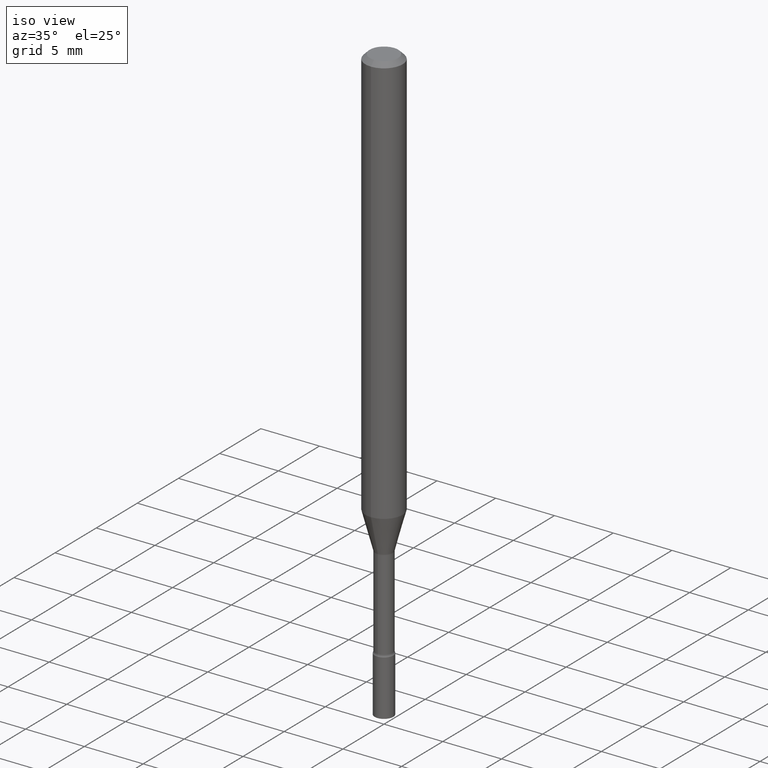
[diagram: clean part render]
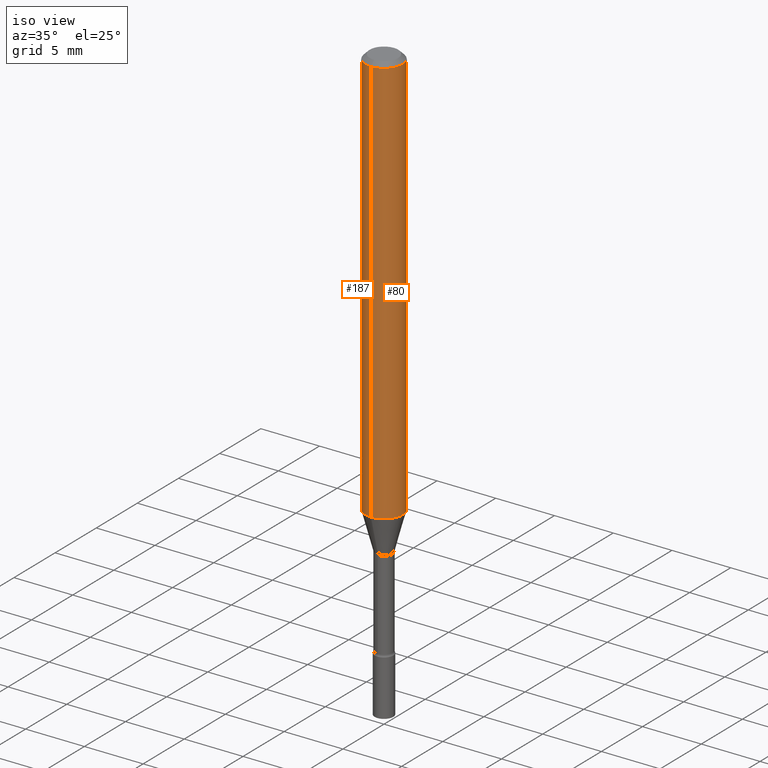
[diagram: same view with one multi-face feature highlighted, each face labeled with its STEP entity id]
A machine part, iso view. The highlighted faces form ONE feature: a constant-radius fillet chain: 2 tangent blend faces with common blend radius 1.5875 mm. The faces share edges in the B-rep.
Their STEP definitions:
[1] entity #80 (Cylinder):
#1 = VERTEX_POINT ( 'NONE', #380 ) ;
#4 = DIRECTION ( 'NONE',  ( -6.982962677686265922E-15, -1.000000000000000000, 4.370956789862821150E-15 ) ) ;
#7 = AXIS2_PLACEMENT_3D ( 'NONE', #347, #103, #153 ) ;
#27 = CIRCLE ( 'NONE', #87, 0.06250000000000000000 ) ;
#33 = DIRECTION ( 'NONE',  ( -2.445468536737133447E-29, 3.491481724708021844E-15, 1.000000000000000000 ) ) ;
#35 = VECTOR ( 'NONE', #409, 39.37007874015748143 ) ;
#54 = LINE ( 'NONE', #334, #205 ) ;
#70 = EDGE_LOOP ( 'NONE', ( #164, #259, #296, #333 ) ) ;
#80 = ADVANCED_FACE ( 'NONE', ( #344 ), #106, .T. ) ;
#87 = AXIS2_PLACEMENT_3D ( 'NONE', #184, #89, #4 ) ;
#89 = DIRECTION ( 'NONE',  ( -2.445468536737133447E-29, 3.491481724708021844E-15, 1.000000000000000000 ) ) ;
#92 = CARTESIAN_POINT ( 'NONE',  ( -4.364351673553580935E-16, -0.06250000000000484335, -1.379536105567578108 ) ) ;
#103 = DIRECTION ( 'NONE',  ( -2.445468536737133447E-29, 3.491481724708021844E-15, 1.000000000000000000 ) ) ;
#105 = VERTEX_POINT ( 'NONE', #332 ) ;
#106 = CYLINDRICAL_SURFACE ( 'NONE', #7, 0.06250000000000000000 ) ;
#133 = DIRECTION ( 'NONE',  ( -6.982962677686265922E-15, -1.000000000000000000, 3.483106191921935554E-15 ) ) ;
#139 = CARTESIAN_POINT ( 'NONE',  ( 4.440892098500961428E-16, 0.06249999999999514971, -1.379536105567578552 ) ) ;
#142 = EDGE_CURVE ( 'NONE', #1, #105, #452, .T. ) ;
#153 = DIRECTION ( 'NONE',  ( -6.982962677686265922E-15, -1.000000000000000000, 3.491481724708021450E-15 ) ) ;
#163 = EDGE_CURVE ( 'NONE', #216, #1, #54, .T. ) ;
#164 = ORIENTED_EDGE ( 'NONE', *, *, #286, .T. ) ;
#184 = CARTESIAN_POINT ( 'NONE',  ( 3.373612141458389252E-29, -4.816625101164076707E-15, -1.379536105567578330 ) ) ;
#205 = VECTOR ( 'NONE', #499, 39.37007874015748143 ) ;
#216 = VERTEX_POINT ( 'NONE', #92 ) ;
#259 = ORIENTED_EDGE ( 'NONE', *, *, #278, .T. ) ;
#273 = CARTESIAN_POINT ( 'NONE',  ( 3.668202805105707334E-31, -5.237222587062043490E-17, -0.01500000000000003067 ) ) ;
#278 = EDGE_CURVE ( 'NONE', #468, #105, #420, .T. ) ;
#286 = EDGE_CURVE ( 'NONE', #216, #468, #27, .T. ) ;
#296 = ORIENTED_EDGE ( 'NONE', *, *, #142, .F. ) ;
#332 = CARTESIAN_POINT ( 'NONE',  ( 4.440892098500965372E-16, 0.06249999999999995837, -0.01500000000000024751 ) ) ;
#333 = ORIENTED_EDGE ( 'NONE', *, *, #163, .F. ) ;
#334 = CARTESIAN_POINT ( 'NONE',  ( -4.364351673553916201E-16, -0.06250000000000000000, 2.182176077942513406E-16 ) ) ;
#344 = FACE_OUTER_BOUND ( 'NONE', #70, .T. ) ;
#347 = CARTESIAN_POINT ( 'NONE',  ( 0.000000000000000000, 0.000000000000000000, 0.000000000000000000 ) ) ;
#380 = CARTESIAN_POINT ( 'NONE',  ( -4.364351673553912750E-16, -0.06250000000000005551, -0.01499999999999981209 ) ) ;
#409 = DIRECTION ( 'NONE',  ( -2.445468536737133447E-29, 3.491481724708022239E-15, 1.000000000000000000 ) ) ;
#420 = LINE ( 'NONE', #445, #35 ) ;
#423 = AXIS2_PLACEMENT_3D ( 'NONE', #273, #33, #133 ) ;
#445 = CARTESIAN_POINT ( 'NONE',  ( 4.440892098500625669E-16, 0.06250000000000000000, -2.182176077942513406E-16 ) ) ;
#452 = CIRCLE ( 'NONE', #423, 0.06250000000000000000 ) ;
#468 = VERTEX_POINT ( 'NONE', #139 ) ;
#499 = DIRECTION ( 'NONE',  ( -2.445468536737133447E-29, 3.491481724708022239E-15, 1.000000000000000000 ) ) ;
[2] entity #187 (Cylinder):
#1 = VERTEX_POINT ( 'NONE', #380 ) ;
#35 = VECTOR ( 'NONE', #409, 39.37007874015748143 ) ;
#38 = DIRECTION ( 'NONE',  ( -2.445468536737133447E-29, 3.491481724708021844E-15, 1.000000000000000000 ) ) ;
#54 = LINE ( 'NONE', #334, #205 ) ;
#57 = AXIS2_PLACEMENT_3D ( 'NONE', #459, #255, #125 ) ;
#58 = ORIENTED_EDGE ( 'NONE', *, *, #163, .T. ) ;
#81 = ORIENTED_EDGE ( 'NONE', *, *, #345, .F. ) ;
#92 = CARTESIAN_POINT ( 'NONE',  ( -4.364351673553580935E-16, -0.06250000000000484335, -1.379536105567578108 ) ) ;
#105 = VERTEX_POINT ( 'NONE', #332 ) ;
#125 = DIRECTION ( 'NONE',  ( -6.982962677686265922E-15, -1.000000000000000000, 4.370956789862821150E-15 ) ) ;
#139 = CARTESIAN_POINT ( 'NONE',  ( 4.440892098500961428E-16, 0.06249999999999514971, -1.379536105567578552 ) ) ;
#148 = DIRECTION ( 'NONE',  ( -2.445468536737133447E-29, 3.491481724708021844E-15, 1.000000000000000000 ) ) ;
#161 = CYLINDRICAL_SURFACE ( 'NONE', #519, 0.06250000000000000000 ) ;
#163 = EDGE_CURVE ( 'NONE', #216, #1, #54, .T. ) ;
#187 = ADVANCED_FACE ( 'NONE', ( #208 ), #161, .T. ) ;
#205 = VECTOR ( 'NONE', #499, 39.37007874015748143 ) ;
#208 = FACE_OUTER_BOUND ( 'NONE', #433, .T. ) ;
#216 = VERTEX_POINT ( 'NONE', #92 ) ;
#249 = CIRCLE ( 'NONE', #57, 0.06250000000000000000 ) ;
#255 = DIRECTION ( 'NONE',  ( -2.445468536737133447E-29, 3.491481724708021844E-15, 1.000000000000000000 ) ) ;
#270 = EDGE_CURVE ( 'NONE', #468, #216, #249, .T. ) ;
#278 = EDGE_CURVE ( 'NONE', #468, #105, #420, .T. ) ;
#304 = CARTESIAN_POINT ( 'NONE',  ( 3.668202805105707334E-31, -5.237222587062043490E-17, -0.01500000000000003067 ) ) ;
#307 = DIRECTION ( 'NONE',  ( -6.982962677686265922E-15, -1.000000000000000000, 3.483106191921935554E-15 ) ) ;
#315 = CARTESIAN_POINT ( 'NONE',  ( 0.000000000000000000, 0.000000000000000000, 0.000000000000000000 ) ) ;
#332 = CARTESIAN_POINT ( 'NONE',  ( 4.440892098500965372E-16, 0.06249999999999995837, -0.01500000000000024751 ) ) ;
#334 = CARTESIAN_POINT ( 'NONE',  ( -4.364351673553916201E-16, -0.06250000000000000000, 2.182176077942513406E-16 ) ) ;
#345 = EDGE_CURVE ( 'NONE', #105, #1, #436, .T. ) ;
#359 = DIRECTION ( 'NONE',  ( -6.982962677686265922E-15, -1.000000000000000000, 3.491481724708021450E-15 ) ) ;
#380 = CARTESIAN_POINT ( 'NONE',  ( -4.364351673553912750E-16, -0.06250000000000005551, -0.01499999999999981209 ) ) ;
#409 = DIRECTION ( 'NONE',  ( -2.445468536737133447E-29, 3.491481724708022239E-15, 1.000000000000000000 ) ) ;
#420 = LINE ( 'NONE', #445, #35 ) ;
#433 = EDGE_LOOP ( 'NONE', ( #464, #477, #58, #81 ) ) ;
#436 = CIRCLE ( 'NONE', #441, 0.06250000000000000000 ) ;
#441 = AXIS2_PLACEMENT_3D ( 'NONE', #304, #148, #307 ) ;
#445 = CARTESIAN_POINT ( 'NONE',  ( 4.440892098500625669E-16, 0.06250000000000000000, -2.182176077942513406E-16 ) ) ;
#459 = CARTESIAN_POINT ( 'NONE',  ( 3.373612141458389252E-29, -4.816625101164076707E-15, -1.379536105567578330 ) ) ;
#464 = ORIENTED_EDGE ( 'NONE', *, *, #278, .F. ) ;
#468 = VERTEX_POINT ( 'NONE', #139 ) ;
#477 = ORIENTED_EDGE ( 'NONE', *, *, #270, .T. ) ;
#499 = DIRECTION ( 'NONE',  ( -2.445468536737133447E-29, 3.491481724708022239E-15, 1.000000000000000000 ) ) ;
#519 = AXIS2_PLACEMENT_3D ( 'NONE', #315, #38, #359 ) ;